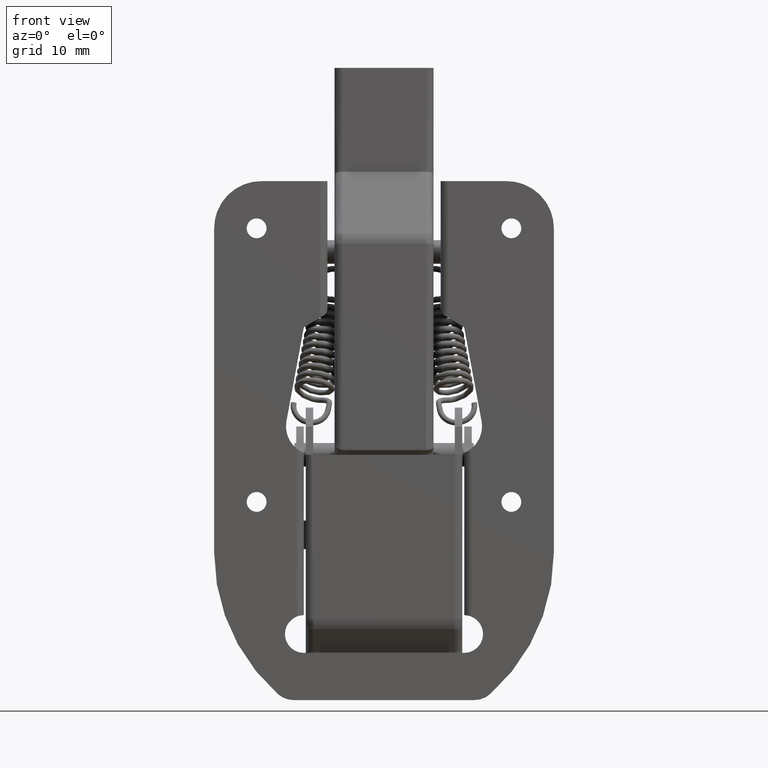
[diagram: clean part render]
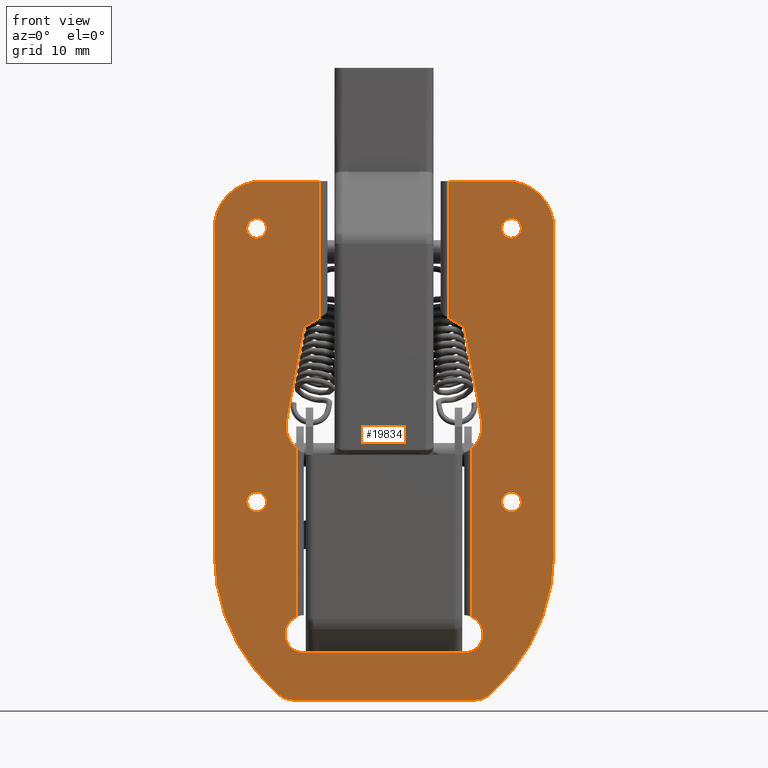
[diagram: same view with one face highlighted and labeled with its STEP entity id]
A machine part, front view. The second image highlights one B-rep face of the part: STEP entity #19834.
In plain terms, the highlighted face is a freeform B-spline surface patch.
Its self-contained STEP definition (entity closure, byte-faithful):
#16466=CARTESIAN_POINT('',(-0.649636010246157,1.419714E-017,0.824907906491055));
#16467=VERTEX_POINT('',#16466);
#16468=CARTESIAN_POINT('',(-1.050000000000000,0.0,0.0));
#16469=VERTEX_POINT('',#16468);
#16470=CARTESIAN_POINT('',(-0.649636010246157,1.419714E-017,0.824907906491055));
#16471=CARTESIAN_POINT('',(-1.050000000000000,0.0,0.509611055891058));
#16472=CARTESIAN_POINT('',(-1.050000000000000,0.0,0.0));
#16480=(BOUNDED_CURVE()B_SPLINE_CURVE(2,(#16470,#16471,#16472),.UNSPECIFIED.,.F.,.U.)B_SPLINE_CURVE_WITH_KNOTS((3,3),(0.357127540890583,0.500000000000000),.UNSPECIFIED.)CURVE()GEOMETRIC_REPRESENTATION_ITEM()RATIONAL_B_SPLINE_CURVE((0.856547225993736,0.832614502286598,1.0))REPRESENTATION_ITEM(''));
#16481=EDGE_CURVE('',#16467,#16469,#16480,.T.);
#16483=CARTESIAN_POINT('',(1.050000000000000,0.0,0.0));
#16484=VERTEX_POINT('',#16483);
#16485=CARTESIAN_POINT('',(-1.050000000000000,0.0,0.0));
#16486=CARTESIAN_POINT('',(-1.050000000000000,0.0,-1.050000000000000));
#16487=CARTESIAN_POINT('',(0.0,0.0,-1.050000000000000));
#16488=CARTESIAN_POINT('',(1.050000000000000,0.0,-1.050000000000000));
#16489=CARTESIAN_POINT('',(1.050000000000000,0.0,0.0));
#16497=(BOUNDED_CURVE()B_SPLINE_CURVE(2,(#16485,#16486,#16487,#16488,#16489),.UNSPECIFIED.,.F.,.U.)B_SPLINE_CURVE_WITH_KNOTS((3,2,3),(0.500000000000000,0.750000000000000,1.0),.UNSPECIFIED.)CURVE()GEOMETRIC_REPRESENTATION_ITEM()RATIONAL_B_SPLINE_CURVE((1.0,0.707106781186548,1.0,0.707106781186548,1.0))REPRESENTATION_ITEM(''));
#16498=EDGE_CURVE('',#16469,#16484,#16497,.T.);
#16500=CARTESIAN_POINT('',(0.786404650723722,6.762629E-013,0.695749757683838));
#16501=VERTEX_POINT('',#16500);
#16502=CARTESIAN_POINT('',(1.050000000000000,0.0,0.0));
#16503=CARTESIAN_POINT('',(1.050000000000000,0.0,0.397808427070086));
#16504=CARTESIAN_POINT('',(0.786404650723722,6.762629E-013,0.695749757683838));
#16512=(BOUNDED_CURVE()B_SPLINE_CURVE(2,(#16502,#16503,#16504),.UNSPECIFIED.,.F.,.U.)B_SPLINE_CURVE_WITH_KNOTS((3,3),(0.0,0.115779639749619),.UNSPECIFIED.)CURVE()GEOMETRIC_REPRESENTATION_ITEM()RATIONAL_B_SPLINE_CURVE((1.0,0.864355714562688,0.854350201141588))REPRESENTATION_ITEM(''));
#16513=EDGE_CURVE('',#16484,#16501,#16512,.T.);
#16582=CARTESIAN_POINT('',(0.786404650723722,6.762629E-013,0.695749757683838));
#16583=CARTESIAN_POINT('',(0.472991549691581,0.0,1.050000000000000));
#16584=CARTESIAN_POINT('',(0.0,0.0,1.050000000000000));
#16585=CARTESIAN_POINT('',(-0.363814035025683,0.0,1.050000000000000));
#16586=CARTESIAN_POINT('',(-0.649636010246157,1.419714E-017,0.824907906491055));
#16594=(BOUNDED_CURVE()B_SPLINE_CURVE(2,(#16582,#16583,#16584,#16585,#16586),.UNSPECIFIED.,.F.,.U.)B_SPLINE_CURVE_WITH_KNOTS((3,2,3),(0.115779639749619,0.250000000000000,0.357127540890583),.UNSPECIFIED.)CURVE()GEOMETRIC_REPRESENTATION_ITEM()RATIONAL_B_SPLINE_CURVE((0.854350201141588,0.842751066623859,1.0,0.874492278899950,0.856547225993736))REPRESENTATION_ITEM(''));
#16595=EDGE_CURVE('',#16501,#16467,#16594,.T.);
#16656=CARTESIAN_POINT('',(-0.649636010246156,1.419714E-017,-28.175092093508940));
#16657=VERTEX_POINT('',#16656);
#16658=CARTESIAN_POINT('',(-1.050000000000000,0.0,-29.0));
#16659=VERTEX_POINT('',#16658);
#16660=CARTESIAN_POINT('',(-0.649636010246156,1.419714E-017,-28.175092093508944));
#16661=CARTESIAN_POINT('',(-1.050000000000000,0.0,-28.490388944108943));
#16662=CARTESIAN_POINT('',(-1.050000000000000,0.0,-29.0));
#16670=(BOUNDED_CURVE()B_SPLINE_CURVE(2,(#16660,#16661,#16662),.UNSPECIFIED.,.F.,.U.)B_SPLINE_CURVE_WITH_KNOTS((3,3),(0.357127540890582,0.500000000000000),.UNSPECIFIED.)CURVE()GEOMETRIC_REPRESENTATION_ITEM()RATIONAL_B_SPLINE_CURVE((0.856547225993736,0.832614502286597,1.0))REPRESENTATION_ITEM(''));
#16671=EDGE_CURVE('',#16657,#16659,#16670,.T.);
#16673=CARTESIAN_POINT('',(1.050000000000000,0.0,-29.0));
#16674=VERTEX_POINT('',#16673);
#16675=CARTESIAN_POINT('',(-1.050000000000000,0.0,-29.0));
#16676=CARTESIAN_POINT('',(-1.050000000000000,0.0,-30.049999999999990));
#16677=CARTESIAN_POINT('',(0.0,0.0,-30.050000000000001));
#16678=CARTESIAN_POINT('',(1.050000000000000,0.0,-30.049999999999990));
#16679=CARTESIAN_POINT('',(1.050000000000000,0.0,-29.0));
#16687=(BOUNDED_CURVE()B_SPLINE_CURVE(2,(#16675,#16676,#16677,#16678,#16679),.UNSPECIFIED.,.F.,.U.)B_SPLINE_CURVE_WITH_KNOTS((3,2,3),(0.500000000000000,0.750000000000000,1.0),.UNSPECIFIED.)CURVE()GEOMETRIC_REPRESENTATION_ITEM()RATIONAL_B_SPLINE_CURVE((1.0,0.707106781186548,1.0,0.707106781186548,1.0))REPRESENTATION_ITEM(''));
#16688=EDGE_CURVE('',#16659,#16674,#16687,.T.);
#16690=CARTESIAN_POINT('',(0.786404650723723,6.762629E-013,-28.304250242316161));
#16691=VERTEX_POINT('',#16690);
#16692=CARTESIAN_POINT('',(1.050000000000000,0.0,-29.0));
#16693=CARTESIAN_POINT('',(1.050000000000000,0.0,-28.602191572929911));
#16694=CARTESIAN_POINT('',(0.786404650723723,6.762629E-013,-28.304250242316165));
#16702=(BOUNDED_CURVE()B_SPLINE_CURVE(2,(#16692,#16693,#16694),.UNSPECIFIED.,.F.,.U.)B_SPLINE_CURVE_WITH_KNOTS((3,3),(0.0,0.115779639749619),.UNSPECIFIED.)CURVE()GEOMETRIC_REPRESENTATION_ITEM()RATIONAL_B_SPLINE_CURVE((1.0,0.864355714562688,0.854350201141588))REPRESENTATION_ITEM(''));
#16703=EDGE_CURVE('',#16674,#16691,#16702,.T.);
#16772=CARTESIAN_POINT('',(0.786404650723723,6.762629E-013,-28.304250242316165));
#16773=CARTESIAN_POINT('',(0.472991549691580,0.0,-27.949999999999999));
#16774=CARTESIAN_POINT('',(0.0,0.0,-27.949999999999999));
#16775=CARTESIAN_POINT('',(-0.363814035025681,0.0,-27.949999999999999));
#16776=CARTESIAN_POINT('',(-0.649636010246156,1.419714E-017,-28.175092093508944));
#16784=(BOUNDED_CURVE()B_SPLINE_CURVE(2,(#16772,#16773,#16774,#16775,#16776),.UNSPECIFIED.,.F.,.U.)B_SPLINE_CURVE_WITH_KNOTS((3,2,3),(0.115779639749619,0.250000000000000,0.357127540890583),.UNSPECIFIED.)CURVE()GEOMETRIC_REPRESENTATION_ITEM()RATIONAL_B_SPLINE_CURVE((0.854350201141588,0.842751066623859,1.0,0.874492278899950,0.856547225993736))REPRESENTATION_ITEM(''));
#16785=EDGE_CURVE('',#16691,#16657,#16784,.T.);
#16846=CARTESIAN_POINT('',(26.350363989753848,1.419714E-017,-28.175092093508940));
#16847=VERTEX_POINT('',#16846);
#16848=CARTESIAN_POINT('',(25.949999999999999,0.0,-29.0));
#16849=VERTEX_POINT('',#16848);
#16850=CARTESIAN_POINT('',(26.350363989753841,1.419714E-017,-28.175092093508940));
#16851=CARTESIAN_POINT('',(25.949999999999999,0.0,-28.490388944108940));
#16852=CARTESIAN_POINT('',(25.949999999999999,0.0,-29.0));
#16860=(BOUNDED_CURVE()B_SPLINE_CURVE(2,(#16850,#16851,#16852),.UNSPECIFIED.,.F.,.U.)B_SPLINE_CURVE_WITH_KNOTS((3,3),(0.357127540890582,0.500000000000000),.UNSPECIFIED.)CURVE()GEOMETRIC_REPRESENTATION_ITEM()RATIONAL_B_SPLINE_CURVE((0.856547225993736,0.832614502286597,1.0))REPRESENTATION_ITEM(''));
#16861=EDGE_CURVE('',#16847,#16849,#16860,.T.);
#16863=CARTESIAN_POINT('',(28.050000000000001,0.0,-29.0));
#16864=VERTEX_POINT('',#16863);
#16865=CARTESIAN_POINT('',(25.949999999999999,0.0,-29.0));
#16866=CARTESIAN_POINT('',(25.949999999999999,0.0,-30.049999999999990));
#16867=CARTESIAN_POINT('',(27.0,0.0,-30.050000000000001));
#16868=CARTESIAN_POINT('',(28.050000000000001,0.0,-30.049999999999990));
#16869=CARTESIAN_POINT('',(28.050000000000001,0.0,-29.0));
#16877=(BOUNDED_CURVE()B_SPLINE_CURVE(2,(#16865,#16866,#16867,#16868,#16869),.UNSPECIFIED.,.F.,.U.)B_SPLINE_CURVE_WITH_KNOTS((3,2,3),(0.500000000000000,0.750000000000000,1.0),.UNSPECIFIED.)CURVE()GEOMETRIC_REPRESENTATION_ITEM()RATIONAL_B_SPLINE_CURVE((1.0,0.707106781186548,1.0,0.707106781186548,1.0))REPRESENTATION_ITEM(''));
#16878=EDGE_CURVE('',#16849,#16864,#16877,.T.);
#16880=CARTESIAN_POINT('',(27.786404650723728,6.763583E-013,-28.304250242316169));
#16881=VERTEX_POINT('',#16880);
#16882=CARTESIAN_POINT('',(28.050000000000001,0.0,-29.0));
#16883=CARTESIAN_POINT('',(28.049999999999994,0.0,-28.602191572929922));
#16884=CARTESIAN_POINT('',(27.786404650723725,6.763583E-013,-28.304250242316172));
#16892=(BOUNDED_CURVE()B_SPLINE_CURVE(2,(#16882,#16883,#16884),.UNSPECIFIED.,.F.,.U.)B_SPLINE_CURVE_WITH_KNOTS((3,3),(0.0,0.115779639749619),.UNSPECIFIED.)CURVE()GEOMETRIC_REPRESENTATION_ITEM()RATIONAL_B_SPLINE_CURVE((1.0,0.864355714562689,0.854350201141589))REPRESENTATION_ITEM(''));
#16893=EDGE_CURVE('',#16864,#16881,#16892,.T.);
#16962=CARTESIAN_POINT('',(27.786404650723728,6.763583E-013,-28.304250242316169));
#16963=CARTESIAN_POINT('',(27.472991549691574,0.0,-27.950000000000003));
#16964=CARTESIAN_POINT('',(27.0,0.0,-27.949999999999999));
#16965=CARTESIAN_POINT('',(26.636185964974317,0.0,-27.950000000000003));
#16966=CARTESIAN_POINT('',(26.350363989753841,1.419714E-017,-28.175092093508940));
#16974=(BOUNDED_CURVE()B_SPLINE_CURVE(2,(#16962,#16963,#16964,#16965,#16966),.UNSPECIFIED.,.F.,.U.)B_SPLINE_CURVE_WITH_KNOTS((3,2,3),(0.115779639749619,0.250000000000000,0.357127540890582),.UNSPECIFIED.)CURVE()GEOMETRIC_REPRESENTATION_ITEM()RATIONAL_B_SPLINE_CURVE((0.854350201141588,0.842751066623859,1.0,0.874492278899951,0.856547225993736))REPRESENTATION_ITEM(''));
#16975=EDGE_CURVE('',#16881,#16847,#16974,.T.);
#17036=CARTESIAN_POINT('',(26.350363989753841,1.419714E-017,0.824907906491055));
#17037=VERTEX_POINT('',#17036);
#17038=CARTESIAN_POINT('',(25.949999999999999,0.0,0.0));
#17039=VERTEX_POINT('',#17038);
#17040=CARTESIAN_POINT('',(26.350363989753848,1.419714E-017,0.824907906491055));
#17041=CARTESIAN_POINT('',(25.950000000000003,0.0,0.509611055891057));
#17042=CARTESIAN_POINT('',(25.949999999999999,0.0,0.0));
#17050=(BOUNDED_CURVE()B_SPLINE_CURVE(2,(#17040,#17041,#17042),.UNSPECIFIED.,.F.,.U.)B_SPLINE_CURVE_WITH_KNOTS((3,3),(0.357127540890583,0.500000000000000),.UNSPECIFIED.)CURVE()GEOMETRIC_REPRESENTATION_ITEM()RATIONAL_B_SPLINE_CURVE((0.856547225993736,0.832614502286598,1.0))REPRESENTATION_ITEM(''));
#17051=EDGE_CURVE('',#17037,#17039,#17050,.T.);
#17053=CARTESIAN_POINT('',(28.050000000000001,0.0,0.0));
#17054=VERTEX_POINT('',#17053);
#17055=CARTESIAN_POINT('',(25.949999999999999,0.0,0.0));
#17056=CARTESIAN_POINT('',(25.949999999999999,0.0,-1.050000000000000));
#17057=CARTESIAN_POINT('',(27.0,0.0,-1.050000000000000));
#17058=CARTESIAN_POINT('',(28.050000000000001,0.0,-1.050000000000000));
#17059=CARTESIAN_POINT('',(28.050000000000001,0.0,0.0));
#17067=(BOUNDED_CURVE()B_SPLINE_CURVE(2,(#17055,#17056,#17057,#17058,#17059),.UNSPECIFIED.,.F.,.U.)B_SPLINE_CURVE_WITH_KNOTS((3,2,3),(0.500000000000000,0.750000000000000,1.0),.UNSPECIFIED.)CURVE()GEOMETRIC_REPRESENTATION_ITEM()RATIONAL_B_SPLINE_CURVE((1.0,0.707106781186548,1.0,0.707106781186548,1.0))REPRESENTATION_ITEM(''));
#17068=EDGE_CURVE('',#17039,#17054,#17067,.T.);
#17070=CARTESIAN_POINT('',(27.786404650723728,6.762629E-013,0.695749757683837));
#17071=VERTEX_POINT('',#17070);
#17072=CARTESIAN_POINT('',(28.050000000000001,0.0,0.0));
#17073=CARTESIAN_POINT('',(28.050000000000001,0.0,0.397808427070085));
#17074=CARTESIAN_POINT('',(27.786404650723725,6.762629E-013,0.695749757683837));
#17082=(BOUNDED_CURVE()B_SPLINE_CURVE(2,(#17072,#17073,#17074),.UNSPECIFIED.,.F.,.U.)B_SPLINE_CURVE_WITH_KNOTS((3,3),(0.0,0.115779639749619),.UNSPECIFIED.)CURVE()GEOMETRIC_REPRESENTATION_ITEM()RATIONAL_B_SPLINE_CURVE((1.0,0.864355714562689,0.854350201141588))REPRESENTATION_ITEM(''));
#17083=EDGE_CURVE('',#17054,#17071,#17082,.T.);
#17152=CARTESIAN_POINT('',(27.786404650723728,6.762629E-013,0.695749757683837));
#17153=CARTESIAN_POINT('',(27.472991549691585,0.0,1.050000000000000));
#17154=CARTESIAN_POINT('',(27.0,0.0,1.050000000000000));
#17155=CARTESIAN_POINT('',(26.636185964974313,0.0,1.050000000000000));
#17156=CARTESIAN_POINT('',(26.350363989753848,1.419714E-017,0.824907906491055));
#17164=(BOUNDED_CURVE()B_SPLINE_CURVE(2,(#17152,#17153,#17154,#17155,#17156),.UNSPECIFIED.,.F.,.U.)B_SPLINE_CURVE_WITH_KNOTS((3,2,3),(0.115779639749619,0.250000000000000,0.357127540890583),.UNSPECIFIED.)CURVE()GEOMETRIC_REPRESENTATION_ITEM()RATIONAL_B_SPLINE_CURVE((0.854350201141588,0.842751066623859,1.0,0.874492278899950,0.856547225993736))REPRESENTATION_ITEM(''));
#17165=EDGE_CURVE('',#17071,#17037,#17164,.T.);
#17584=CARTESIAN_POINT('',(20.300000000000001,0.0,5.0));
#17585=VERTEX_POINT('',#17584);
#17623=CARTESIAN_POINT('',(20.300000000000001,0.0,-9.479973548662970));
#17624=VERTEX_POINT('',#17623);
#17638=CARTESIAN_POINT('',(20.300000000000001,0.0,5.0));
#17639=CARTESIAN_POINT('',(20.300000000000001,0.0,-9.479973548662970));
#17640=QUASI_UNIFORM_CURVE('',1,(#17638,#17639),.UNSPECIFIED.,.F.,.U.);
#17641=EDGE_CURVE('',#17585,#17624,#17640,.T.);
#18056=CARTESIAN_POINT('',(22.800000000000001,0.0,-41.166969722017548));
#18057=VERTEX_POINT('',#18056);
#18085=CARTESIAN_POINT('',(22.800000000000001,0.0,-23.316256411742899));
#18086=VERTEX_POINT('',#18085);
#18087=CARTESIAN_POINT('',(22.800000000000001,0.0,-23.316256411742899));
#18088=CARTESIAN_POINT('',(22.800000000000001,0.0,-41.166969722017548));
#18089=QUASI_UNIFORM_CURVE('',1,(#18087,#18088),.UNSPECIFIED.,.F.,.U.);
#18090=EDGE_CURVE('',#18086,#18057,#18089,.T.);
#18533=CARTESIAN_POINT('',(6.700000000000000,0.0,5.0));
#18534=VERTEX_POINT('',#18533);
#18548=CARTESIAN_POINT('',(6.700000000000000,0.0,-9.480025895846501));
#18549=VERTEX_POINT('',#18548);
#18550=CARTESIAN_POINT('',(6.700000000000000,0.0,-9.480025895846501));
#18551=CARTESIAN_POINT('',(6.700000000000000,0.0,5.0));
#18552=QUASI_UNIFORM_CURVE('',1,(#18550,#18551),.UNSPECIFIED.,.F.,.U.);
#18553=EDGE_CURVE('',#18549,#18534,#18552,.T.);
#18847=CARTESIAN_POINT('',(4.200000000000000,0.0,-23.316255495171401));
#18848=VERTEX_POINT('',#18847);
#18875=CARTESIAN_POINT('',(4.200000000000000,0.0,-41.166969722017548));
#18876=VERTEX_POINT('',#18875);
#18877=CARTESIAN_POINT('',(4.200000000000000,0.0,-41.166969722017548));
#18878=CARTESIAN_POINT('',(4.200000000000000,0.0,-23.316255495171401));
#18879=QUASI_UNIFORM_CURVE('',1,(#18877,#18878),.UNSPECIFIED.,.F.,.U.);
#18880=EDGE_CURVE('',#18876,#18848,#18879,.T.);
#19433=CARTESIAN_POINT('',(5.0,0.0,-45.0));
#19434=VERTEX_POINT('',#19433);
#19435=CARTESIAN_POINT('',(5.0,0.0,-45.0));
#19436=CARTESIAN_POINT('',(3.374327868151942,0.0,-45.000000000000007));
#19437=CARTESIAN_POINT('',(3.042187374138589,0.0,-43.408619287378407));
#19438=CARTESIAN_POINT('',(2.710046880125236,0.0,-41.817238574756828));
#19439=CARTESIAN_POINT('',(4.200000000000040,0.0,-41.166969722017647));
#19447=(BOUNDED_CURVE()B_SPLINE_CURVE(2,(#19435,#19436,#19437,#19438,#19439),.UNSPECIFIED.,.F.,.U.)B_SPLINE_CURVE_WITH_KNOTS((3,2,3),(0.0,0.500000000000000,1.0),.UNSPECIFIED.)CURVE()GEOMETRIC_REPRESENTATION_ITEM()RATIONAL_B_SPLINE_CURVE((1.0,0.775986354161337,1.0,0.775986354161337,1.0))REPRESENTATION_ITEM(''));
#19448=EDGE_CURVE('',#19434,#18876,#19447,.T.);
#19476=CARTESIAN_POINT('',(22.0,0.0,-45.0));
#19477=VERTEX_POINT('',#19476);
#19478=CARTESIAN_POINT('',(22.799999999999962,0.0,-41.166969722017647));
#19479=CARTESIAN_POINT('',(24.289953119874763,0.0,-41.817238574756828));
#19480=CARTESIAN_POINT('',(23.957812625861411,0.0,-43.408619287378407));
#19481=CARTESIAN_POINT('',(23.625672131848049,0.0,-45.000000000000007));
#19482=CARTESIAN_POINT('',(22.0,0.0,-45.0));
#19490=(BOUNDED_CURVE()B_SPLINE_CURVE(2,(#19478,#19479,#19480,#19481,#19482),.UNSPECIFIED.,.F.,.U.)B_SPLINE_CURVE_WITH_KNOTS((3,2,3),(0.0,0.500000000000000,1.0),.UNSPECIFIED.)CURVE()GEOMETRIC_REPRESENTATION_ITEM()RATIONAL_B_SPLINE_CURVE((1.0,0.775986354161337,1.0,0.775986354161337,1.0))REPRESENTATION_ITEM(''));
#19491=EDGE_CURVE('',#18057,#19477,#19490,.T.);
#19556=CARTESIAN_POINT('',(-4.500000000000000,0.0,0.0));
#19557=VERTEX_POINT('',#19556);
#19563=CARTESIAN_POINT('',(0.500000000000000,0.0,5.0));
#19564=VERTEX_POINT('',#19563);
#19565=CARTESIAN_POINT('',(0.500000000000000,0.0,5.0));
#19566=CARTESIAN_POINT('',(-4.500000000000002,0.0,5.000000000000001));
#19567=CARTESIAN_POINT('',(-4.500000000000001,0.0,0.0));
#19575=(BOUNDED_CURVE()B_SPLINE_CURVE(2,(#19565,#19566,#19567),.UNSPECIFIED.,.F.,.U.)CURVE()GEOMETRIC_REPRESENTATION_ITEM()QUASI_UNIFORM_CURVE()RATIONAL_B_SPLINE_CURVE((1.0,0.707106781186548,1.0))REPRESENTATION_ITEM(''));
#19576=EDGE_CURVE('',#19564,#19557,#19575,.T.);
#19617=CARTESIAN_POINT('',(26.500000000000000,0.0,5.0));
#19618=VERTEX_POINT('',#19617);
#19624=CARTESIAN_POINT('',(31.500000000000000,0.0,0.0));
#19625=VERTEX_POINT('',#19624);
#19626=CARTESIAN_POINT('',(31.500000000000000,0.0,0.0));
#19627=CARTESIAN_POINT('',(31.500000000000000,0.0,5.000000000000001));
#19628=CARTESIAN_POINT('',(26.500000000000000,0.0,5.0));
#19636=(BOUNDED_CURVE()B_SPLINE_CURVE(2,(#19626,#19627,#19628),.UNSPECIFIED.,.F.,.U.)CURVE()GEOMETRIC_REPRESENTATION_ITEM()QUASI_UNIFORM_CURVE()RATIONAL_B_SPLINE_CURVE((1.0,0.707106781186548,1.0))REPRESENTATION_ITEM(''));
#19637=EDGE_CURVE('',#19625,#19618,#19636,.T.);
#19647=CARTESIAN_POINT('',(-6.298199930225013,0.0,7.747249893399333));
#19648=CARTESIAN_POINT('',(33.298200895820258,0.0,7.747249893399333));
#19649=CARTESIAN_POINT('',(-6.298199930225013,0.0,-52.747251368614279));
#19650=CARTESIAN_POINT('',(33.298200895820258,0.0,-52.747251368614279));
#19651=B_SPLINE_SURFACE_WITH_KNOTS('',1,1,((#19647,#19649),(#19648,#19650)),.UNSPECIFIED.,.F.,.F.,.U.,(2,2),(2,2),(0.0,39.596400826045269),(0.0,60.494501262013607),.UNSPECIFIED.);
#19652=CARTESIAN_POINT('',(26.500000000000000,0.0,5.0));
#19653=CARTESIAN_POINT('',(20.300000000000001,0.0,5.0));
#19654=QUASI_UNIFORM_CURVE('',1,(#19652,#19653),.UNSPECIFIED.,.F.,.U.);
#19655=EDGE_CURVE('',#19618,#17585,#19654,.T.);
#19656=ORIENTED_EDGE('',*,*,#19655,.T.);
#19657=ORIENTED_EDGE('',*,*,#17641,.T.);
#19658=CARTESIAN_POINT('',(21.999993541613001,0.0,-10.499980124927999));
#19659=VERTEX_POINT('',#19658);
#19660=CARTESIAN_POINT('',(20.300000000000001,0.0,-9.479973548662970));
#19661=CARTESIAN_POINT('',(21.999993541613001,0.0,-10.499980124927999));
#19662=QUASI_UNIFORM_CURVE('',1,(#19660,#19661),.UNSPECIFIED.,.F.,.U.);
#19663=EDGE_CURVE('',#17624,#19659,#19662,.T.);
#19664=ORIENTED_EDGE('',*,*,#19663,.T.);
#19665=CARTESIAN_POINT('',(23.843292999999949,0.0,-20.453734999999899));
#19666=VERTEX_POINT('',#19665);
#19667=CARTESIAN_POINT('',(21.999993541613001,0.0,-10.499980124927999));
#19668=CARTESIAN_POINT('',(23.843292999999949,0.0,-20.453734999999899));
#19669=QUASI_UNIFORM_CURVE('',1,(#19667,#19668),.UNSPECIFIED.,.F.,.U.);
#19670=EDGE_CURVE('',#19659,#19666,#19669,.T.);
#19671=ORIENTED_EDGE('',*,*,#19670,.T.);
#19672=CARTESIAN_POINT('',(22.799999999999979,0.0,-23.316256411742870));
#19673=CARTESIAN_POINT('',(24.165283549364936,0.0,-22.192473101335533));
#19674=CARTESIAN_POINT('',(23.843292999999949,0.0,-20.453734999999899));
#19682=(BOUNDED_CURVE()B_SPLINE_CURVE(2,(#19672,#19673,#19674),.UNSPECIFIED.,.F.,.U.)CURVE()GEOMETRIC_REPRESENTATION_ITEM()QUASI_UNIFORM_CURVE()RATIONAL_B_SPLINE_CURVE((1.0,0.861481704998709,1.0))REPRESENTATION_ITEM(''));
#19683=EDGE_CURVE('',#18086,#19666,#19682,.T.);
#19684=ORIENTED_EDGE('',*,*,#19683,.F.);
#19685=ORIENTED_EDGE('',*,*,#18090,.T.);
#19686=ORIENTED_EDGE('',*,*,#19491,.T.);
#19687=CARTESIAN_POINT('',(22.0,0.0,-45.0));
#19688=CARTESIAN_POINT('',(5.0,0.0,-45.0));
#19689=QUASI_UNIFORM_CURVE('',1,(#19687,#19688),.UNSPECIFIED.,.F.,.U.);
#19690=EDGE_CURVE('',#19477,#19434,#19689,.T.);
#19691=ORIENTED_EDGE('',*,*,#19690,.T.);
#19692=ORIENTED_EDGE('',*,*,#19448,.T.);
#19693=ORIENTED_EDGE('',*,*,#18880,.T.);
#19694=CARTESIAN_POINT('',(3.156708000000095,0.0,-20.453734999999899));
#19695=VERTEX_POINT('',#19694);
#19696=CARTESIAN_POINT('',(3.156708000000090,0.0,-20.453734999999899));
#19697=CARTESIAN_POINT('',(2.834717804137521,0.0,-22.192472135712169));
#19698=CARTESIAN_POINT('',(4.200000000000013,0.0,-23.316255495171379));
#19706=(BOUNDED_CURVE()B_SPLINE_CURVE(2,(#19696,#19697,#19698),.UNSPECIFIED.,.F.,.U.)CURVE()GEOMETRIC_REPRESENTATION_ITEM()QUASI_UNIFORM_CURVE()RATIONAL_B_SPLINE_CURVE((1.0,0.861481858602571,1.0))REPRESENTATION_ITEM(''));
#19707=EDGE_CURVE('',#19695,#18848,#19706,.T.);
#19708=ORIENTED_EDGE('',*,*,#19707,.F.);
#19709=CARTESIAN_POINT('',(5.0,0.0,-10.500014999999900));
#19710=VERTEX_POINT('',#19709);
#19711=CARTESIAN_POINT('',(3.156708000000095,0.0,-20.453734999999899));
#19712=CARTESIAN_POINT('',(5.0,0.0,-10.500014999999900));
#19713=QUASI_UNIFORM_CURVE('',1,(#19711,#19712),.UNSPECIFIED.,.F.,.U.);
#19714=EDGE_CURVE('',#19695,#19710,#19713,.T.);
#19715=ORIENTED_EDGE('',*,*,#19714,.T.);
#19716=CARTESIAN_POINT('',(5.0,0.0,-10.500014999999900));
#19717=CARTESIAN_POINT('',(6.700000000000000,0.0,-9.480025895846501));
#19718=QUASI_UNIFORM_CURVE('',1,(#19716,#19717),.UNSPECIFIED.,.F.,.U.);
#19719=EDGE_CURVE('',#19710,#18549,#19718,.T.);
#19720=ORIENTED_EDGE('',*,*,#19719,.T.);
#19721=ORIENTED_EDGE('',*,*,#18553,.T.);
#19722=CARTESIAN_POINT('',(6.700000000000000,0.0,5.0));
#19723=CARTESIAN_POINT('',(0.500000000000000,0.0,5.0));
#19724=QUASI_UNIFORM_CURVE('',1,(#19722,#19723),.UNSPECIFIED.,.F.,.U.);
#19725=EDGE_CURVE('',#18534,#19564,#19724,.T.);
#19726=ORIENTED_EDGE('',*,*,#19725,.T.);
#19727=ORIENTED_EDGE('',*,*,#19576,.T.);
#19728=CARTESIAN_POINT('',(-4.500000000000000,0.0,-34.387512000000100));
#19729=VERTEX_POINT('',#19728);
#19730=CARTESIAN_POINT('',(-4.500000000000000,0.0,0.0));
#19731=CARTESIAN_POINT('',(-4.500000000000000,0.0,-34.387512000000100));
#19732=QUASI_UNIFORM_CURVE('',1,(#19730,#19731),.UNSPECIFIED.,.F.,.U.);
#19733=EDGE_CURVE('',#19557,#19729,#19732,.T.);
#19734=ORIENTED_EDGE('',*,*,#19733,.T.);
#19735=CARTESIAN_POINT('',(2.255054968686985,0.0,-49.373219561456700));
#19736=VERTEX_POINT('',#19735);
#19737=CARTESIAN_POINT('',(-4.500000000000001,0.0,-34.387512000000100));
#19738=CARTESIAN_POINT('',(-4.500000000000001,0.0,-43.402842028274620));
#19739=CARTESIAN_POINT('',(2.255054968686998,0.0,-49.373219561456679));
#19747=(BOUNDED_CURVE()B_SPLINE_CURVE(2,(#19737,#19738,#19739),.UNSPECIFIED.,.F.,.U.)CURVE()GEOMETRIC_REPRESENTATION_ITEM()QUASI_UNIFORM_CURVE()RATIONAL_B_SPLINE_CURVE((1.0,0.911659819111726,1.0))REPRESENTATION_ITEM(''));
#19748=EDGE_CURVE('',#19729,#19736,#19747,.T.);
#19749=ORIENTED_EDGE('',*,*,#19748,.T.);
#19750=CARTESIAN_POINT('',(3.910674869100386,0.0,-50.0));
#19751=VERTEX_POINT('',#19750);
#19752=CARTESIAN_POINT('',(2.255054968686985,0.0,-49.373219561456700));
#19753=CARTESIAN_POINT('',(2.964220518091436,0.0,-50.000002139368881));
#19754=CARTESIAN_POINT('',(3.910674869100386,0.0,-50.0));
#19762=(BOUNDED_CURVE()B_SPLINE_CURVE(2,(#19752,#19753,#19754),.UNSPECIFIED.,.F.,.U.)CURVE()GEOMETRIC_REPRESENTATION_ITEM()QUASI_UNIFORM_CURVE()RATIONAL_B_SPLINE_CURVE((1.0,0.935223531600286,1.0))REPRESENTATION_ITEM(''));
#19763=EDGE_CURVE('',#19736,#19751,#19762,.T.);
#19764=ORIENTED_EDGE('',*,*,#19763,.T.);
#19765=CARTESIAN_POINT('',(23.089325000000098,0.0,-50.0));
#19766=VERTEX_POINT('',#19765);
#19767=CARTESIAN_POINT('',(3.910674869100386,0.0,-50.0));
#19768=CARTESIAN_POINT('',(23.089325000000098,0.0,-50.0));
#19769=QUASI_UNIFORM_CURVE('',1,(#19767,#19768),.UNSPECIFIED.,.F.,.U.);
#19770=EDGE_CURVE('',#19751,#19766,#19769,.T.);
#19771=ORIENTED_EDGE('',*,*,#19770,.T.);
#19772=CARTESIAN_POINT('',(24.744942965445500,0.0,-49.373213589662001));
#19773=VERTEX_POINT('',#19772);
#19774=CARTESIAN_POINT('',(23.089325000000098,0.0,-50.0));
#19775=CARTESIAN_POINT('',(24.035778867105503,0.0,-50.0));
#19776=CARTESIAN_POINT('',(24.744942965445510,0.0,-49.373213589662008));
#19784=(BOUNDED_CURVE()B_SPLINE_CURVE(2,(#19774,#19775,#19776),.UNSPECIFIED.,.F.,.U.)CURVE()GEOMETRIC_REPRESENTATION_ITEM()QUASI_UNIFORM_CURVE()RATIONAL_B_SPLINE_CURVE((1.0,0.935223351896434,1.0))REPRESENTATION_ITEM(''));
#19785=EDGE_CURVE('',#19766,#19773,#19784,.T.);
#19786=ORIENTED_EDGE('',*,*,#19785,.T.);
#19787=CARTESIAN_POINT('',(31.500000000000000,0.0,-34.387512000000100));
#19788=VERTEX_POINT('',#19787);
#19789=CARTESIAN_POINT('',(24.744942965445500,0.0,-49.373213589662001));
#19790=CARTESIAN_POINT('',(31.499998065345928,0.0,-43.402838391384428));
#19791=CARTESIAN_POINT('',(31.500000000000000,0.0,-34.387512000000100));
#19799=(BOUNDED_CURVE()B_SPLINE_CURVE(2,(#19789,#19790,#19791),.UNSPECIFIED.,.F.,.U.)CURVE()GEOMETRIC_REPRESENTATION_ITEM()QUASI_UNIFORM_CURVE()RATIONAL_B_SPLINE_CURVE((1.0,0.911659843839160,1.0))REPRESENTATION_ITEM(''));
#19800=EDGE_CURVE('',#19773,#19788,#19799,.T.);
#19801=ORIENTED_EDGE('',*,*,#19800,.T.);
#19802=CARTESIAN_POINT('',(31.500000000000000,0.0,-34.387512000000100));
#19803=CARTESIAN_POINT('',(31.500000000000000,0.0,0.0));
#19804=QUASI_UNIFORM_CURVE('',1,(#19802,#19803),.UNSPECIFIED.,.F.,.U.);
#19805=EDGE_CURVE('',#19788,#19625,#19804,.T.);
#19806=ORIENTED_EDGE('',*,*,#19805,.T.);
#19807=ORIENTED_EDGE('',*,*,#19637,.T.);
#19808=EDGE_LOOP('',(#19656,#19657,#19664,#19671,#19684,#19685,#19686,#19691,#19692,#19693,#19708,#19715,#19720,#19721,#19726,#19727,#19734,#19749,#19764,#19771,#19786,#19801,#19806,#19807));
#19809=FACE_OUTER_BOUND('',#19808,.T.);
#19810=ORIENTED_EDGE('',*,*,#16688,.F.);
#19811=ORIENTED_EDGE('',*,*,#16671,.F.);
#19812=ORIENTED_EDGE('',*,*,#16785,.F.);
#19813=ORIENTED_EDGE('',*,*,#16703,.F.);
#19814=EDGE_LOOP('',(#19810,#19811,#19812,#19813));
#19815=FACE_BOUND('',#19814,.T.);
#19816=ORIENTED_EDGE('',*,*,#16878,.F.);
#19817=ORIENTED_EDGE('',*,*,#16861,.F.);
#19818=ORIENTED_EDGE('',*,*,#16975,.F.);
#19819=ORIENTED_EDGE('',*,*,#16893,.F.);
#19820=EDGE_LOOP('',(#19816,#19817,#19818,#19819));
#19821=FACE_BOUND('',#19820,.T.);
#19822=ORIENTED_EDGE('',*,*,#17068,.F.);
#19823=ORIENTED_EDGE('',*,*,#17051,.F.);
#19824=ORIENTED_EDGE('',*,*,#17165,.F.);
#19825=ORIENTED_EDGE('',*,*,#17083,.F.);
#19826=EDGE_LOOP('',(#19822,#19823,#19824,#19825));
#19827=FACE_BOUND('',#19826,.T.);
#19828=ORIENTED_EDGE('',*,*,#16498,.F.);
#19829=ORIENTED_EDGE('',*,*,#16481,.F.);
#19830=ORIENTED_EDGE('',*,*,#16595,.F.);
#19831=ORIENTED_EDGE('',*,*,#16513,.F.);
#19832=EDGE_LOOP('',(#19828,#19829,#19830,#19831));
#19833=FACE_BOUND('',#19832,.T.);
#19834=ADVANCED_FACE('',(#19809,#19815,#19821,#19827,#19833),#19651,.F.);